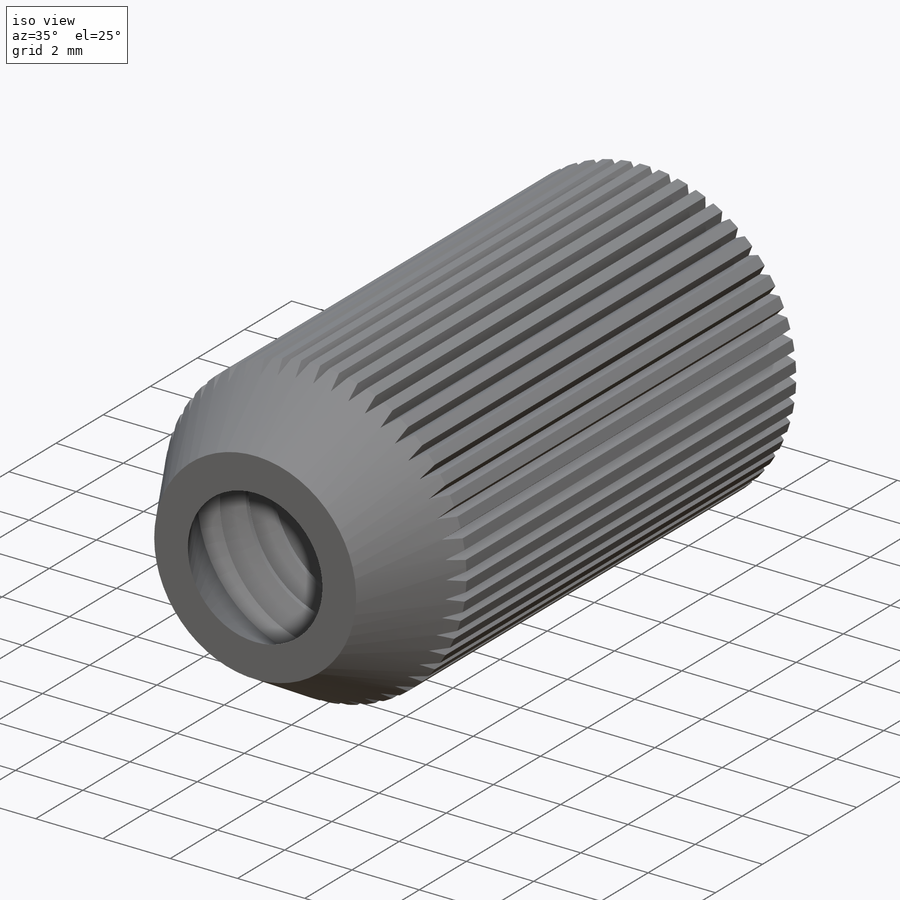
[diagram: iso view]
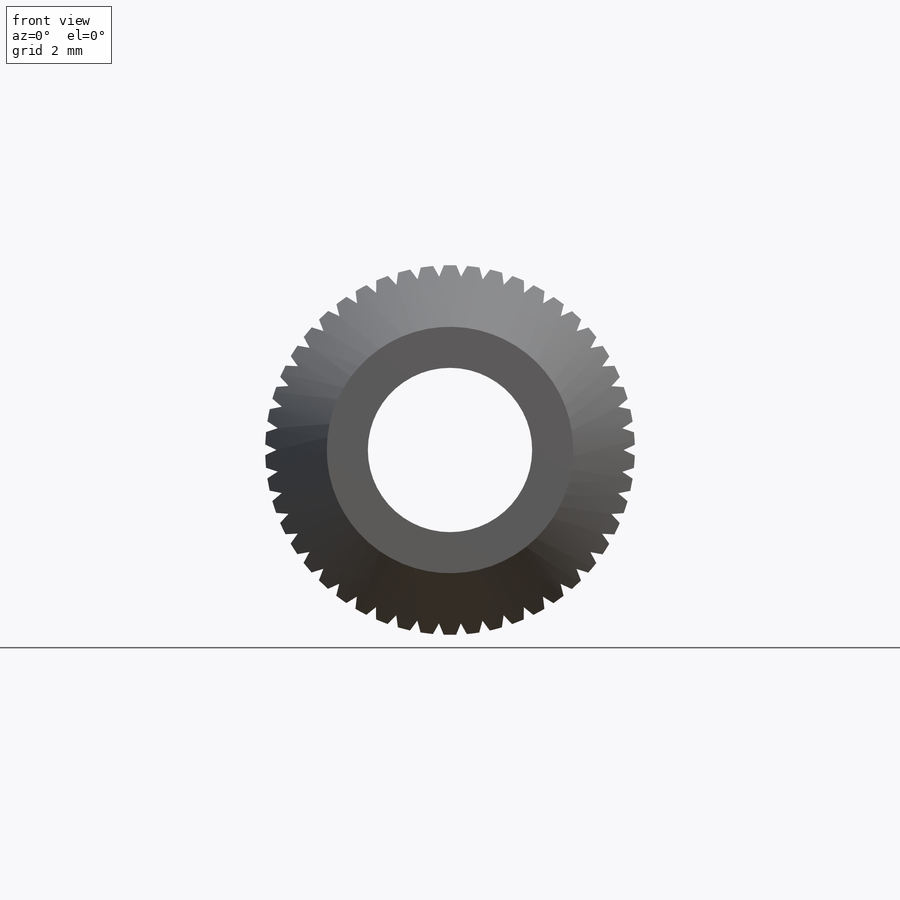
[diagram: front view]
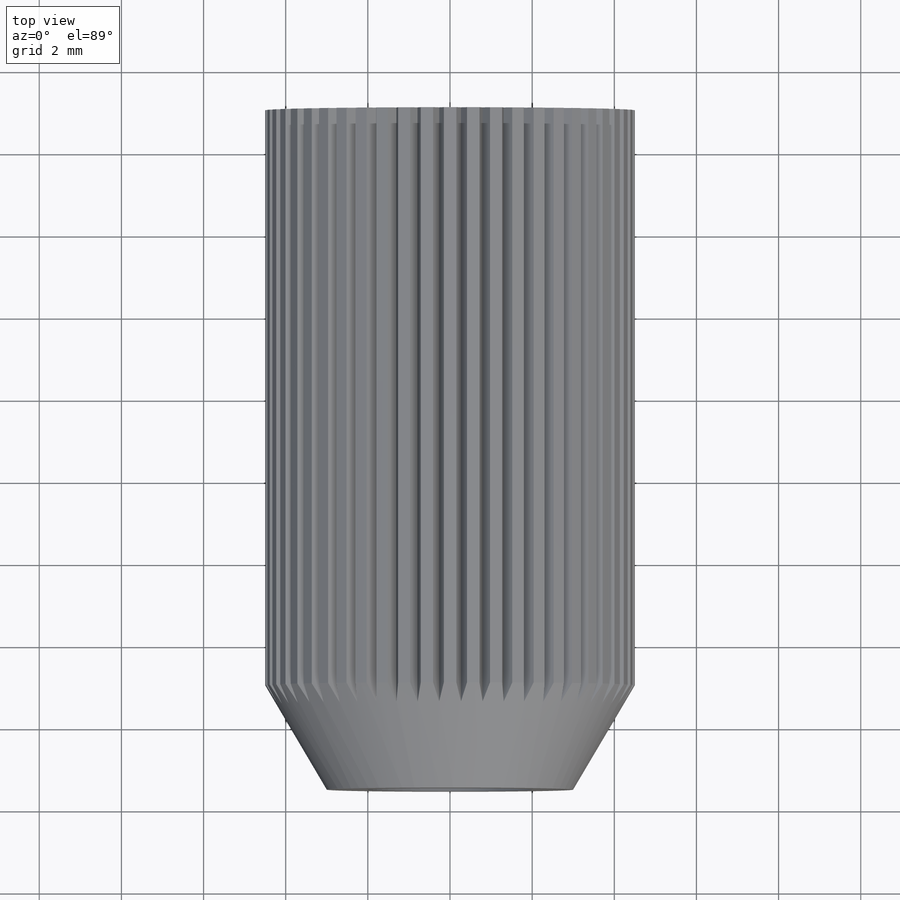
[diagram: top view]
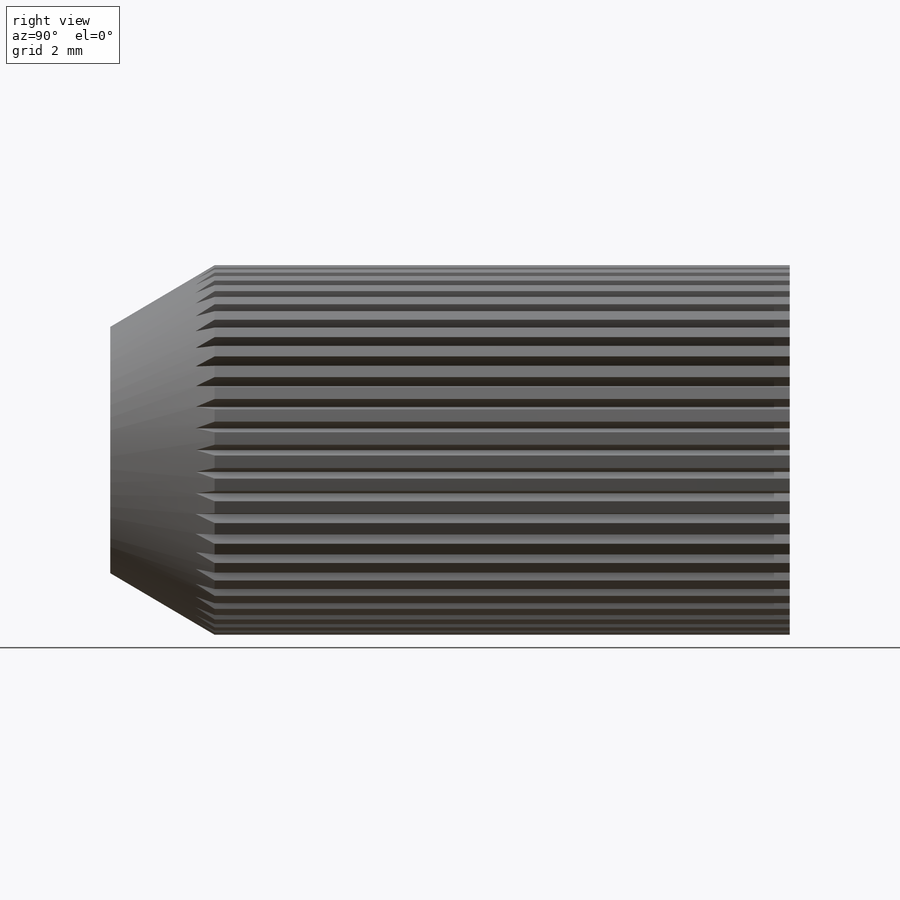
[diagram: right view]
SOLIDWORKS PART (.sldprt)
format: sldprt  version: not decoded by parser v0  size: 1,104,896 bytes
history: native  units: mm
features: sketch x12, cut_extrude x5, extrude x2, material x1, helix x1, sweep x1, boolean_combine x1, mirror x1, revolve x1, pattern_circular x1 (+14 scaffold rows collapsed)
feature tree (40):
  scaffold x14  (default folders/planes/origin — collapsed)
  material  "Material <not specified>"
  sketch  "Sketch1"  dims[hex=~16.364937mm dia=7.0mm]
  extrude  "Extrude1"  Depth=14mm length=14mm
  sketch  "Sketch4"
  sketch  "Sketch10"
  cut_extrude  "Cut-Extrude2"  [1 undecoded]
  sketch  "Sketch11"
  cut_extrude  "Cut-Extrude3"  [1 undecoded]
  sketch  "Sketch13"
  extrude  "Boss-Extrude1"  [1 undecoded]
  helix  "Helix/Spiral3"  Pitch=14mm
  sketch  "Sketch12"  dims[c1.D1=~0.240021mm c2.D1=60.0deg c2.D2=0.125mm c2.D3=0.5mm]
  sweep  "Cut-Sweep1"
  boolean_combine  "Combine1"
  sketch  "Sketch7"
  cut_extrude  "Extrude2"  Depth=25.4mm
  mirror  "Mirror2"
  sketch  "Sketch8"  dims[c1.D1=3.175mm c2.D1=45.0deg]
  sketch  "Sketch14"
  sketch  "Sketch15"  dims[D1=9.0mm D2=~26.533309mm]
  cut_extrude  "Cut-Extrude4"  [1 undecoded]
  sketch  "Sketch16"  dims[c1.D1=2.95mm c1.D2=1.0mm c1.D3=3.0mm c1.D4=~9.26787mm c2.D3=3.0mm]
  revolve  "Revolve1"  Angle=360deg
  sketch  "Sketch17"  dims[c1.D1=~0.470569mm c2.D1=~53.674194deg c3.D1=0.3mm]
  cut_extrude  "Cut-Extrude6"  Depth=15mm
  pattern_circular  "CirPattern1"  Count=50 Angle=360deg
decode coverage: 12 of 25 modeling features carry decoded parameters
note: ~ marks probable driven/reference dimensions
note: 4 parameter values undecoded
summary: no parameter record found for 4 features
note: suppression state not decoded; provenance and decode notes live in map.json
